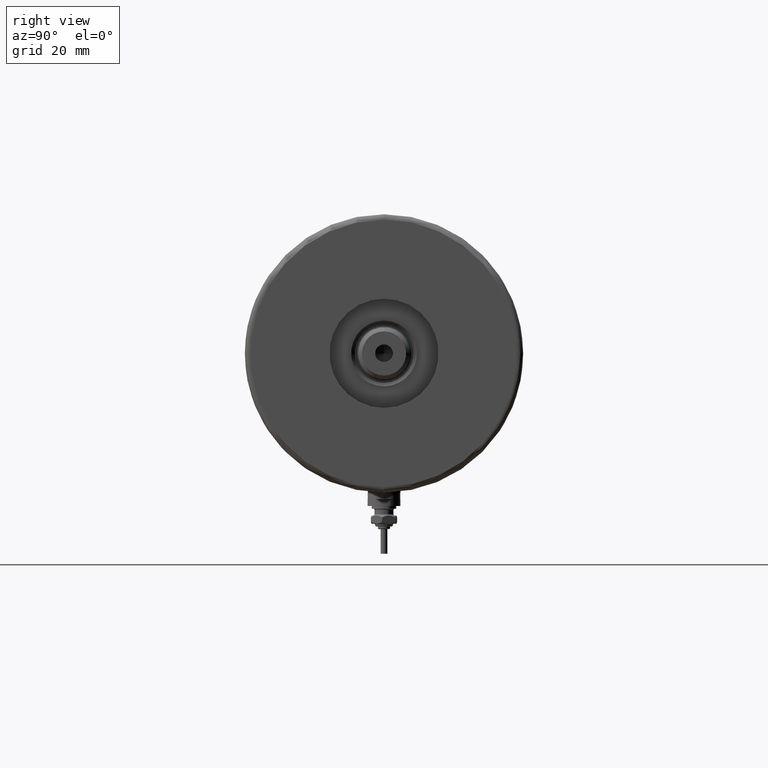
[diagram: clean part render]
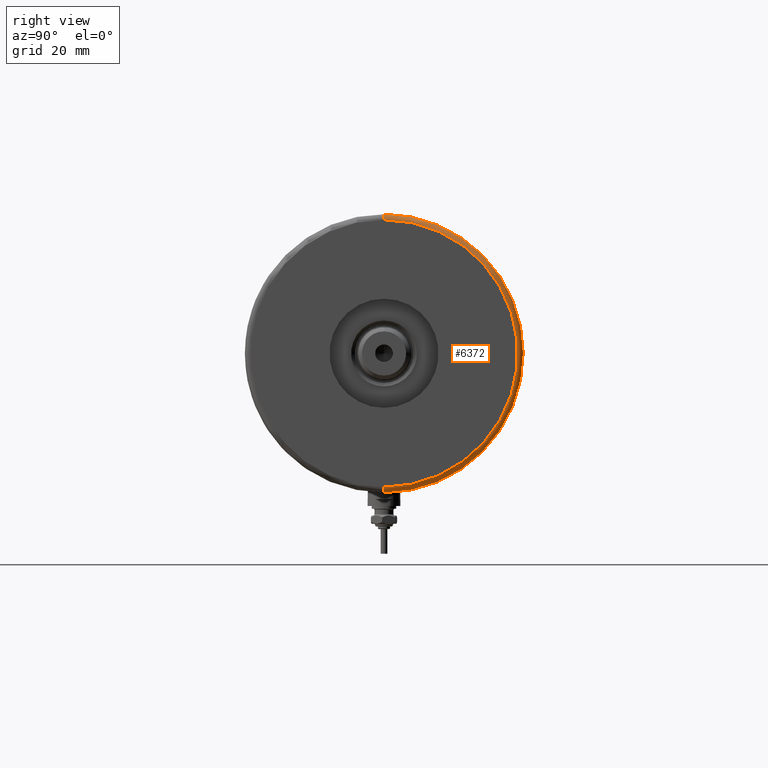
[diagram: same view with one face highlighted and labeled with its STEP entity id]
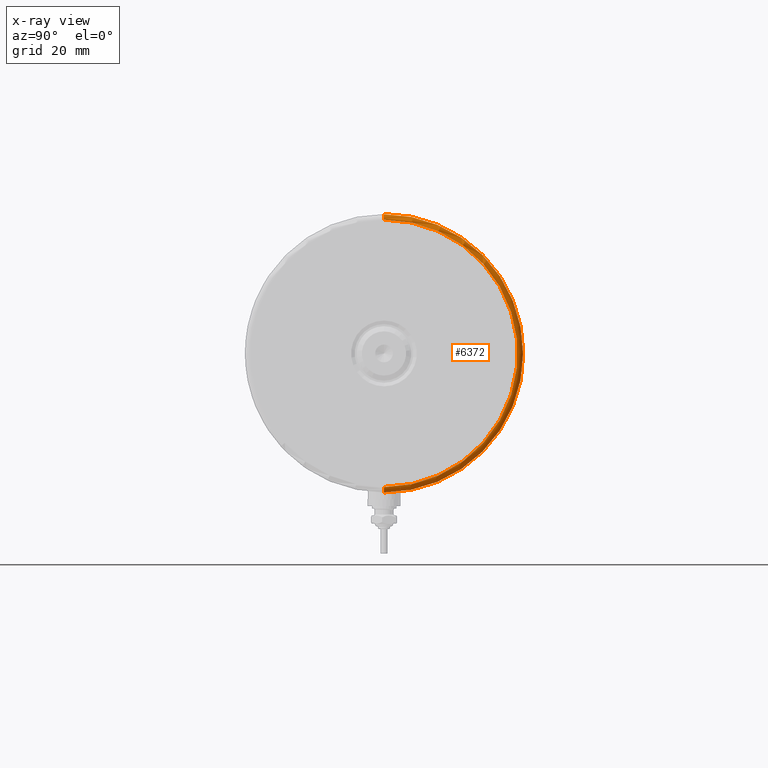
[diagram: x-ray of the same camera — body ghosted, the highlighted face saturated]
A machine part, right view. The second image highlights one B-rep face of the part: STEP entity #6372.
The next image is the same camera in x-ray: the body ghosted, the highlighted face saturated — about 0% of this face is hidden behind the body in this view.
In plain terms, the highlighted toroidal blend (fillet) surface has major radius 49 mm and minor (blend) radius 2 mm.
Its self-contained STEP definition (entity closure, byte-faithful):
#61 = DIRECTION ( 'NONE',  ( 1.000000000000000000, 0.000000000000000000, 0.000000000000000000 ) ) ;
#214 = CARTESIAN_POINT ( 'NONE',  ( 48.99999999999998579, 0.000000000000000000, 26.00000000000000355 ) ) ;
#568 = DIRECTION ( 'NONE',  ( 1.224646799147353207E-16, 1.000000000000000000, -0.000000000000000000 ) ) ;
#680 = AXIS2_PLACEMENT_3D ( 'NONE', #5494, #6552, #3519 ) ;
#722 = CARTESIAN_POINT ( 'NONE',  ( 0.000000000000000000, 0.000000000000000000, 28.00000000000000000 ) ) ;
#788 = CIRCLE ( 'NONE', #680, 50.99999999999999289 ) ;
#818 = TOROIDAL_SURFACE ( 'NONE', #3515, 48.99999999999998579, 2.000000000000000000 ) ;
#905 = VERTEX_POINT ( 'NONE', #3330 ) ;
#1102 = EDGE_CURVE ( 'NONE', #905, #5722, #788, .T. ) ;
#1118 = ORIENTED_EDGE ( 'NONE', *, *, #2759, .F. ) ;
#1238 = EDGE_CURVE ( 'NONE', #905, #5892, #4247, .T. ) ;
#1328 = EDGE_LOOP ( 'NONE', ( #2387, #2142, #3501, #1118 ) ) ;
#1539 = CIRCLE ( 'NONE', #3804, 2.000000000000001776 ) ;
#1559 = DIRECTION ( 'NONE',  ( 0.000000000000000000, 0.000000000000000000, 1.000000000000000000 ) ) ;
#1675 = AXIS2_PLACEMENT_3D ( 'NONE', #722, #2314, #6452 ) ;
#1815 = VERTEX_POINT ( 'NONE', #2828 ) ;
#1968 = DIRECTION ( 'NONE',  ( -1.000000000000000000, 1.224646799147353454E-16, 0.000000000000000000 ) ) ;
#2026 = CARTESIAN_POINT ( 'NONE',  ( 50.99999999999999289, 6.245698675651499656E-15, 26.00000000000000355 ) ) ;
#2142 = ORIENTED_EDGE ( 'NONE', *, *, #1238, .T. ) ;
#2210 = AXIS2_PLACEMENT_3D ( 'NONE', #3152, #568, #1968 ) ;
#2286 = DIRECTION ( 'NONE',  ( 0.000000000000000000, 0.000000000000000000, -1.000000000000000000 ) ) ;
#2314 = DIRECTION ( 'NONE',  ( 0.000000000000000000, 0.000000000000000000, 1.000000000000000000 ) ) ;
#2387 = ORIENTED_EDGE ( 'NONE', *, *, #1102, .F. ) ;
#2759 = EDGE_CURVE ( 'NONE', #5722, #1815, #1539, .T. ) ;
#2828 = CARTESIAN_POINT ( 'NONE',  ( 48.99999999999998579, 0.000000000000000000, 28.00000000000000000 ) ) ;
#3050 = CARTESIAN_POINT ( 'NONE',  ( -48.99999999999998579, 6.123233995736764507E-15, 28.00000000000000000 ) ) ;
#3152 = CARTESIAN_POINT ( 'NONE',  ( -48.99999999999998579, 6.000769315822029359E-15, 26.00000000000000355 ) ) ;
#3181 = CIRCLE ( 'NONE', #1675, 48.99999999999998579 ) ;
#3330 = CARTESIAN_POINT ( 'NONE',  ( -50.99999999999999289, 0.000000000000000000, 26.00000000000000355 ) ) ;
#3501 = ORIENTED_EDGE ( 'NONE', *, *, #4466, .F. ) ;
#3515 = AXIS2_PLACEMENT_3D ( 'NONE', #3679, #1559, #61 ) ;
#3519 = DIRECTION ( 'NONE',  ( 1.000000000000000000, 0.000000000000000000, 0.000000000000000000 ) ) ;
#3679 = CARTESIAN_POINT ( 'NONE',  ( 0.000000000000000000, 0.000000000000000000, 26.00000000000000355 ) ) ;
#3804 = AXIS2_PLACEMENT_3D ( 'NONE', #214, #4886, #2286 ) ;
#4247 = CIRCLE ( 'NONE', #2210, 2.000000000000001776 ) ;
#4466 = EDGE_CURVE ( 'NONE', #1815, #5892, #3181, .T. ) ;
#4886 = DIRECTION ( 'NONE',  ( 0.000000000000000000, -1.000000000000000000, 0.000000000000000000 ) ) ;
#5494 = CARTESIAN_POINT ( 'NONE',  ( 0.000000000000000000, 0.000000000000000000, 26.00000000000000355 ) ) ;
#5722 = VERTEX_POINT ( 'NONE', #2026 ) ;
#5892 = VERTEX_POINT ( 'NONE', #3050 ) ;
#6372 = ADVANCED_FACE ( 'NONE', ( #6702 ), #818, .T. ) ;
#6452 = DIRECTION ( 'NONE',  ( 1.000000000000000000, 0.000000000000000000, 0.000000000000000000 ) ) ;
#6552 = DIRECTION ( 'NONE',  ( -0.000000000000000000, -0.000000000000000000, -1.000000000000000000 ) ) ;
#6702 = FACE_OUTER_BOUND ( 'NONE', #1328, .T. ) ;